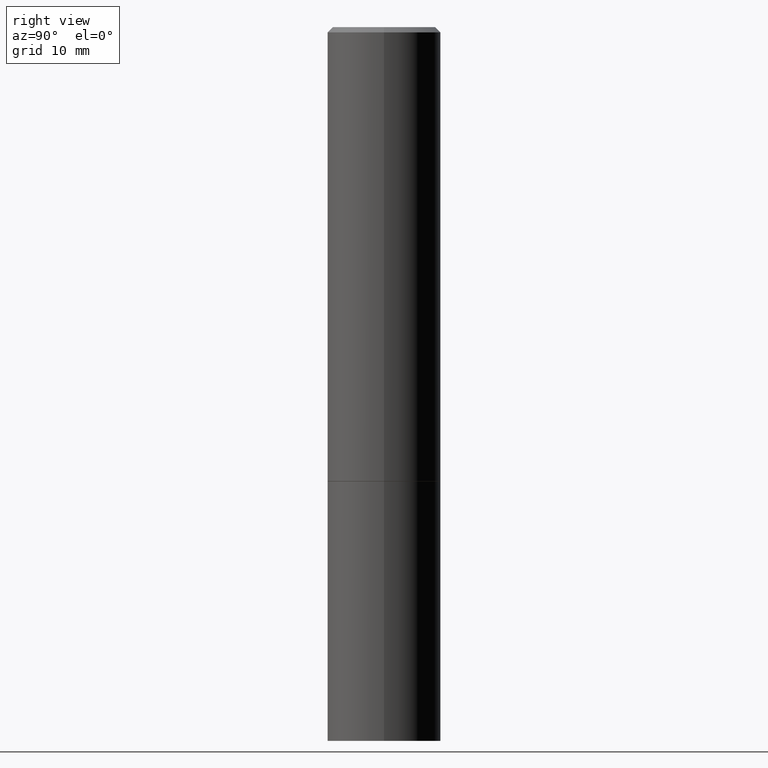
[diagram: clean part render]
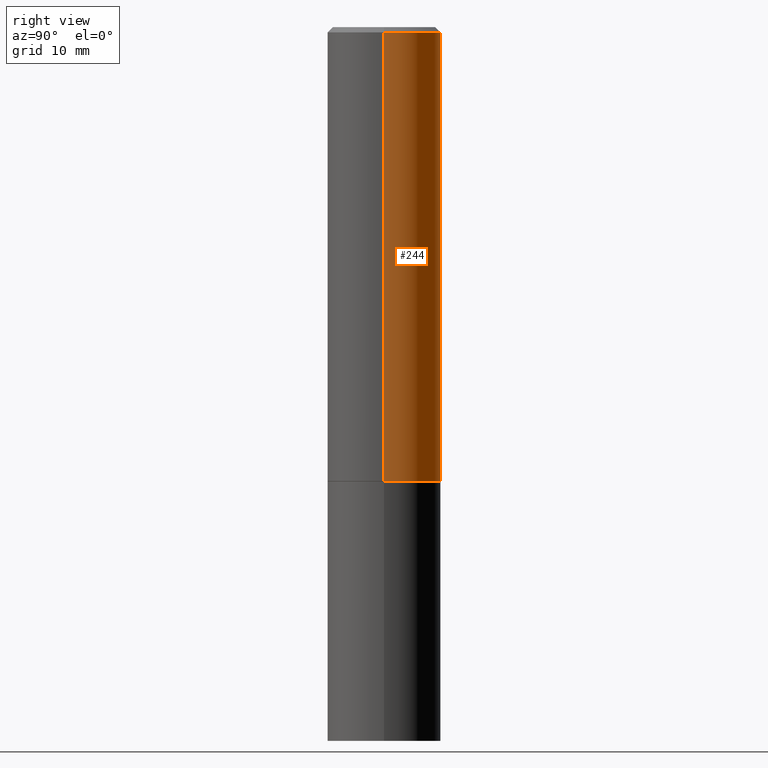
[diagram: same view with one face highlighted and labeled with its STEP entity id]
A machine part, right view. The second image highlights one B-rep face of the part: STEP entity #244.
In plain terms, the highlighted cylindrical surface (partial cylindrical patch) has radius 5.5562 mm, axis along (-0, 0, 1).
Its self-contained STEP definition (entity closure, byte-faithful):
#56 = VERTEX_POINT ( 'NONE', #325 ) ;
#59 = CARTESIAN_POINT ( 'NONE',  ( 0.000000000000000000, 0.000000000000000000, 0.000000000000000000 ) ) ;
#74 = DIRECTION ( 'NONE',  ( 1.000000000000000000, -6.982962677686266711E-15, 0.000000000000000000 ) ) ;
#79 = AXIS2_PLACEMENT_3D ( 'NONE', #59, #251, #166 ) ;
#90 = CARTESIAN_POINT ( 'NONE',  ( -0.2187500000000000000, -1.533903009731541155E-15, -1.748999999999999888 ) ) ;
#102 = CIRCLE ( 'NONE', #152, 0.2187499999999997502 ) ;
#112 = ORIENTED_EDGE ( 'NONE', *, *, #292, .F. ) ;
#126 = CARTESIAN_POINT ( 'NONE',  ( -0.2187499999999998890, 1.554312234475218368E-15, -1.076017050993260062E-29 ) ) ;
#128 = EDGE_CURVE ( 'NONE', #143, #364, #129, .T. ) ;
#129 = LINE ( 'NONE', #126, #215 ) ;
#137 = ORIENTED_EDGE ( 'NONE', *, *, #356, .T. ) ;
#138 = CARTESIAN_POINT ( 'NONE',  ( 0.2187500000000000000, -7.634123947380530929E-15, -1.748999999999999888 ) ) ;
#143 = VERTEX_POINT ( 'NONE', #90 ) ;
#152 = AXIS2_PLACEMENT_3D ( 'NONE', #156, #355, #74 ) ;
#156 = CARTESIAN_POINT ( 'NONE',  ( 4.890937612370284544E-31, -6.982962677686307633E-17, -0.02000000000000004552 ) ) ;
#163 = FACE_OUTER_BOUND ( 'NONE', #195, .T. ) ;
#166 = DIRECTION ( 'NONE',  ( 1.000000000000000000, -6.982962677686266711E-15, 4.876176775795935793E-29 ) ) ;
#183 = DIRECTION ( 'NONE',  ( -2.445468806185136877E-29, 3.491481338843145188E-15, 1.000000000000000000 ) ) ;
#185 = EDGE_CURVE ( 'NONE', #56, #364, #102, .T. ) ;
#188 = CIRCLE ( 'NONE', #217, 0.2187500000000000000 ) ;
#195 = EDGE_LOOP ( 'NONE', ( #137, #199, #338, #112 ) ) ;
#198 = CARTESIAN_POINT ( 'NONE',  ( 4.277124942017804002E-29, -6.106600861636660875E-15, -1.748999999999999888 ) ) ;
#199 = ORIENTED_EDGE ( 'NONE', *, *, #128, .T. ) ;
#202 = LINE ( 'NONE', #287, #347 ) ;
#215 = VECTOR ( 'NONE', #183, 39.37007874015748143 ) ;
#217 = AXIS2_PLACEMENT_3D ( 'NONE', #198, #257, #312 ) ;
#221 = DIRECTION ( 'NONE',  ( -2.445468806185136877E-29, 3.491481338843145188E-15, 1.000000000000000000 ) ) ;
#244 = ADVANCED_FACE ( 'NONE', ( #163 ), #308, .T. ) ;
#251 = DIRECTION ( 'NONE',  ( -2.445468806185136597E-29, 3.491481338843145583E-15, 1.000000000000000000 ) ) ;
#257 = DIRECTION ( 'NONE',  ( -2.445468806185136597E-29, 3.491481338843145583E-15, 1.000000000000000000 ) ) ;
#258 = VERTEX_POINT ( 'NONE', #138 ) ;
#287 = CARTESIAN_POINT ( 'NONE',  ( 0.2187499999999998890, -1.527523085743870054E-15, 1.066663669705360464E-29 ) ) ;
#292 = EDGE_CURVE ( 'NONE', #258, #56, #202, .T. ) ;
#308 = CYLINDRICAL_SURFACE ( 'NONE', #79, 0.2187499999999998890 ) ;
#310 = CARTESIAN_POINT ( 'NONE',  ( -0.2187499999999997502, 1.457693458967005967E-15, -0.02000000000000004552 ) ) ;
#312 = DIRECTION ( 'NONE',  ( 1.000000000000000000, -6.982962677686267499E-15, 0.000000000000000000 ) ) ;
#325 = CARTESIAN_POINT ( 'NONE',  ( 0.2187499999999997502, -1.570563563789383855E-15, -0.02000000000000004552 ) ) ;
#338 = ORIENTED_EDGE ( 'NONE', *, *, #185, .F. ) ;
#347 = VECTOR ( 'NONE', #221, 39.37007874015748143 ) ;
#355 = DIRECTION ( 'NONE',  ( -2.445468806185136597E-29, 3.491481338843145583E-15, 1.000000000000000000 ) ) ;
#356 = EDGE_CURVE ( 'NONE', #258, #143, #188, .T. ) ;
#364 = VERTEX_POINT ( 'NONE', #310 ) ;